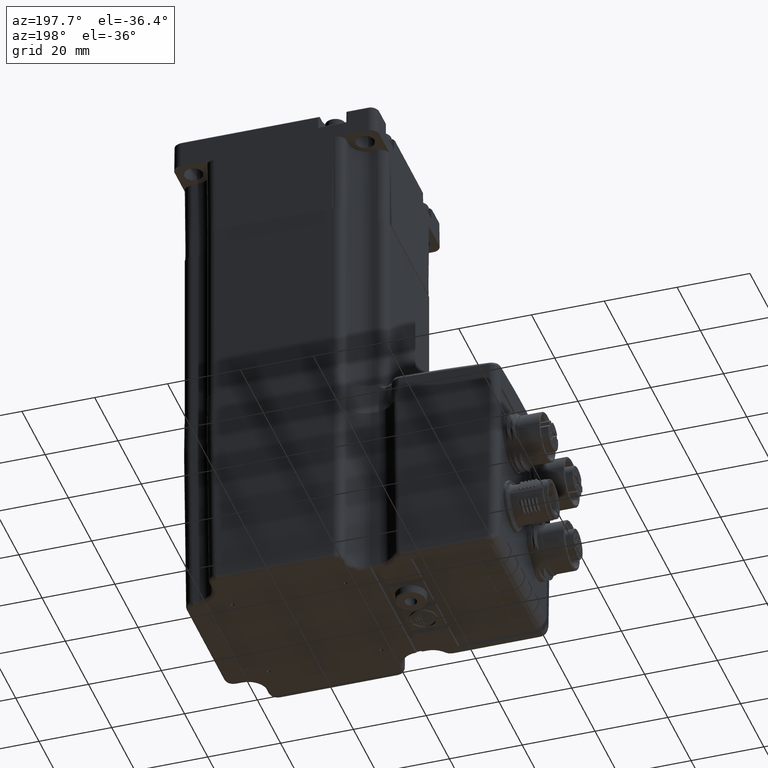
[diagram: clean part render]
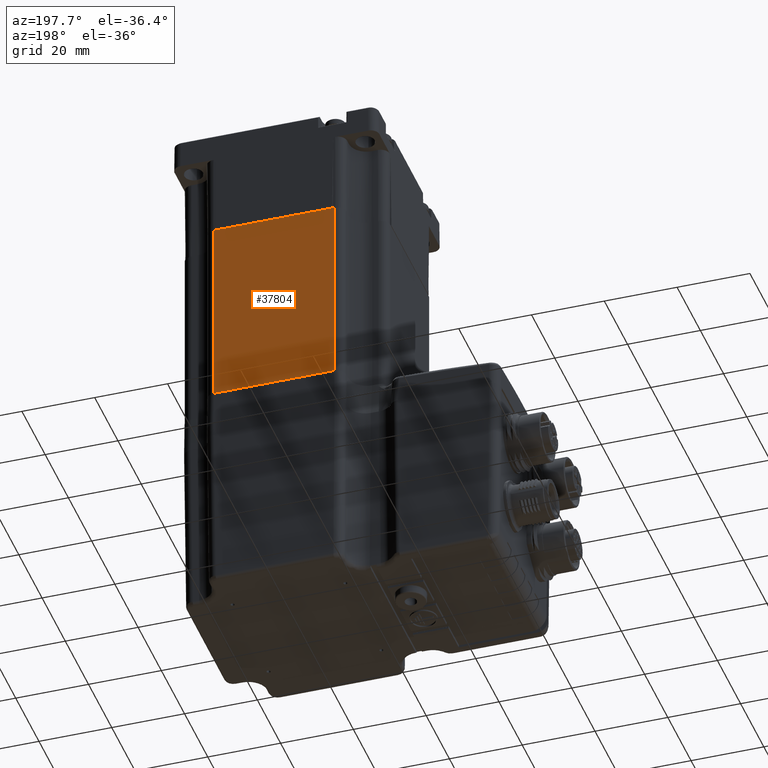
[diagram: same view with one face highlighted and labeled with its STEP entity id]
A machine part, auxiliary view. The second image highlights one B-rep face of the part: STEP entity #37804.
In plain terms, the highlighted planar face has unit normal (0, -1, 0).
Its self-contained STEP definition (entity closure, byte-faithful):
#437 = LINE ( 'NONE', #77284, #55432 ) ;
#2821 = CARTESIAN_POINT ( 'NONE',  ( -16.49999999999998934, 28.19999999999999218, 9.999999999999973355 ) ) ;
#4951 = VERTEX_POINT ( 'NONE', #74620 ) ;
#7093 = LINE ( 'NONE', #120595, #66635 ) ;
#7329 = CARTESIAN_POINT ( 'NONE',  ( -16.49999999999998934, 28.19999999999999574, 9.999999999999973355 ) ) ;
#8380 = ORIENTED_EDGE ( 'NONE', *, *, #123726, .F. ) ;
#11287 = VECTOR ( 'NONE', #42200, 1000.000000000000000 ) ;
#11964 = VERTEX_POINT ( 'NONE', #46040 ) ;
#12732 = CARTESIAN_POINT ( 'NONE',  ( -16.49999999999998934, 28.19999999999999574, -43.00000000000016342 ) ) ;
#13031 = DIRECTION ( 'NONE',  ( 0.0000000000000000000, 0.0000000000000000000, -1.000000000000000000 ) ) ;
#17589 = ORIENTED_EDGE ( 'NONE', *, *, #68782, .T. ) ;
#29983 = VERTEX_POINT ( 'NONE', #54661 ) ;
#31946 = DIRECTION ( 'NONE',  ( -1.000000000000000000, 0.0000000000000000000, 0.0000000000000000000 ) ) ;
#37804 = ADVANCED_FACE ( 'NONE', ( #54628 ), #104664, .F. ) ;
#42136 = VECTOR ( 'NONE', #56915, 1000.000000000000000 ) ;
#42200 = DIRECTION ( 'NONE',  ( -1.000000000000000000, 0.0000000000000000000, 0.0000000000000000000 ) ) ;
#46040 = CARTESIAN_POINT ( 'NONE',  ( 16.50000000000001066, 28.19999999999999574, -43.00000000000002132 ) ) ;
#53008 = VERTEX_POINT ( 'NONE', #64708 ) ;
#53599 = CARTESIAN_POINT ( 'NONE',  ( -15.99928214989810371, 28.19999999999999574, 9.999999999999973355 ) ) ;
#53766 = VECTOR ( 'NONE', #31946, 1000.000000000000000 ) ;
#54628 = FACE_OUTER_BOUND ( 'NONE', #66723, .T. ) ;
#54661 = CARTESIAN_POINT ( 'NONE',  ( 16.50000000000001066, 28.19999999999999574, 9.999999999999973355 ) ) ;
#55432 = VECTOR ( 'NONE', #67097, 1000.000000000000000 ) ;
#56915 = DIRECTION ( 'NONE',  ( -1.000000000000000000, 0.0000000000000000000, 0.0000000000000000000 ) ) ;
#57035 = ORIENTED_EDGE ( 'NONE', *, *, #116415, .F. ) ;
#62142 = DIRECTION ( 'NONE',  ( -1.000000000000000000, 0.0000000000000000000, 0.0000000000000000000 ) ) ;
#64708 = CARTESIAN_POINT ( 'NONE',  ( -16.49999999999998934, 28.19999999999999218, -43.00000000000002132 ) ) ;
#66635 = VECTOR ( 'NONE', #62142, 1000.000000000000000 ) ;
#66723 = EDGE_LOOP ( 'NONE', ( #96140, #125420, #86158, #8380, #57035, #17589 ) ) ;
#67097 = DIRECTION ( 'NONE',  ( 0.0000000000000000000, 0.0000000000000000000, -1.000000000000000000 ) ) ;
#68745 = DIRECTION ( 'NONE',  ( 0.0000000000000000000, -1.000000000000000000, 0.0000000000000000000 ) ) ;
#68782 = EDGE_CURVE ( 'NONE', #29983, #11964, #437, .T. ) ;
#74620 = CARTESIAN_POINT ( 'NONE',  ( 15.99928214989834352, 28.19999999999999574, 9.999999999999973355 ) ) ;
#77284 = CARTESIAN_POINT ( 'NONE',  ( 16.50000000000001066, 28.19999999999999574, 9.999999999999973355 ) ) ;
#82211 = CARTESIAN_POINT ( 'NONE',  ( -16.49999999999998934, 28.19999999999999574, 9.999999999999973355 ) ) ;
#85871 = CARTESIAN_POINT ( 'NONE',  ( -16.49999999999998934, 28.19999999999999574, 9.999999999999973355 ) ) ;
#86158 = ORIENTED_EDGE ( 'NONE', *, *, #123541, .F. ) ;
#92583 = VECTOR ( 'NONE', #13031, 1000.000000000000000 ) ;
#96140 = ORIENTED_EDGE ( 'NONE', *, *, #97369, .T. ) ;
#97369 = EDGE_CURVE ( 'NONE', #11964, #53008, #107132, .T. ) ;
#99016 = CARTESIAN_POINT ( 'NONE',  ( -16.49999999999998934, 28.19999999999999218, 9.999999999999973355 ) ) ;
#99125 = AXIS2_PLACEMENT_3D ( 'NONE', #7329, #68745, #116553 ) ;
#100161 = VERTEX_POINT ( 'NONE', #53599 ) ;
#104664 = PLANE ( 'NONE',  #99125 ) ;
#105960 = LINE ( 'NONE', #82211, #11287 ) ;
#107132 = LINE ( 'NONE', #12732, #53766 ) ;
#114011 = LINE ( 'NONE', #2821, #92583 ) ;
#116415 = EDGE_CURVE ( 'NONE', #29983, #4951, #105960, .T. ) ;
#116553 = DIRECTION ( 'NONE',  ( 0.0000000000000000000, 0.0000000000000000000, -1.000000000000000000 ) ) ;
#119491 = VERTEX_POINT ( 'NONE', #99016 ) ;
#120595 = CARTESIAN_POINT ( 'NONE',  ( -16.49999999999998934, 28.19999999999999574, 9.999999999999973355 ) ) ;
#121485 = LINE ( 'NONE', #85871, #42136 ) ;
#123519 = EDGE_CURVE ( 'NONE', #119491, #53008, #114011, .T. ) ;
#123541 = EDGE_CURVE ( 'NONE', #100161, #119491, #7093, .T. ) ;
#123726 = EDGE_CURVE ( 'NONE', #4951, #100161, #121485, .T. ) ;
#125420 = ORIENTED_EDGE ( 'NONE', *, *, #123519, .F. ) ;